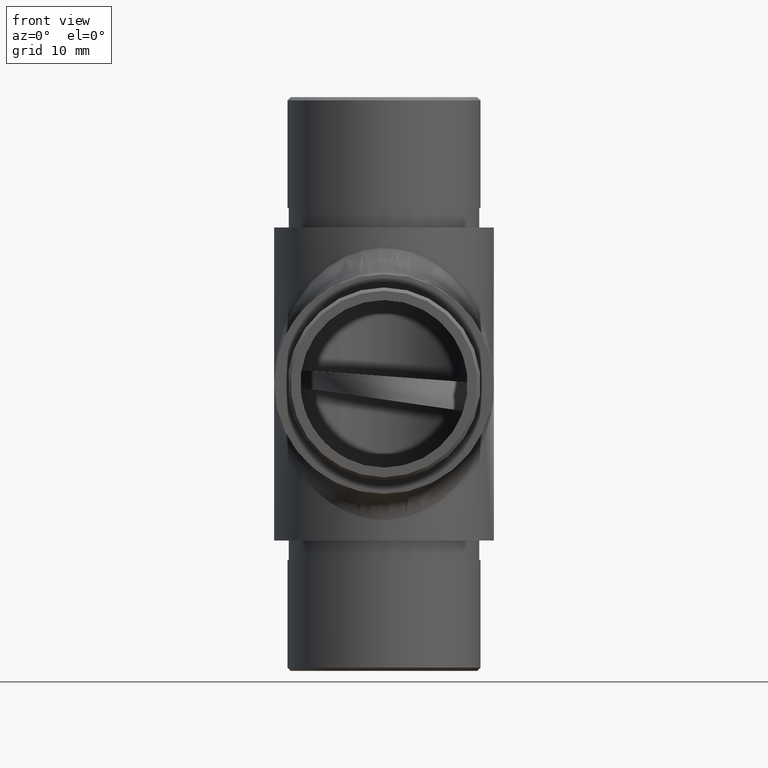
[diagram: clean part render]
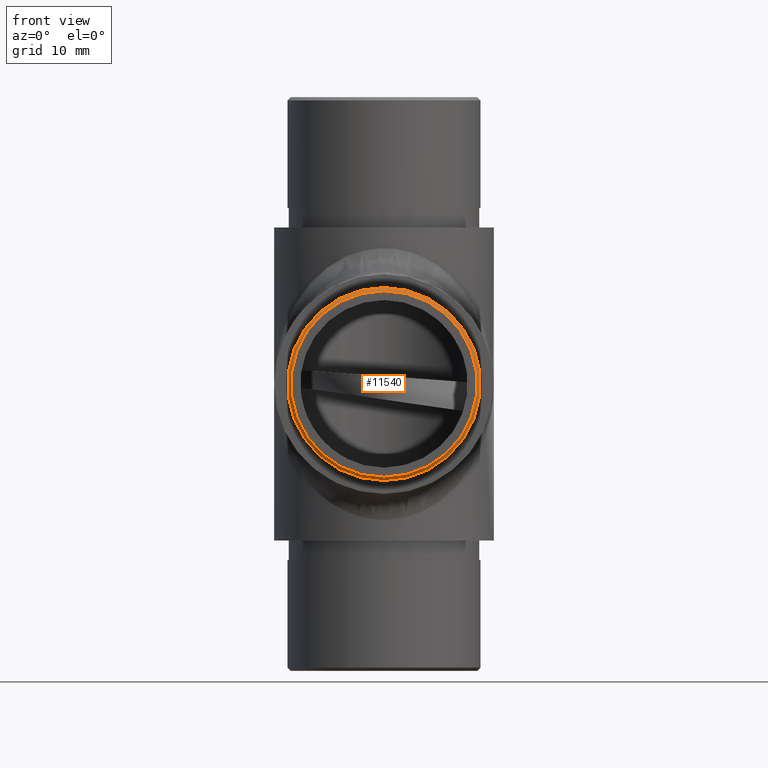
[diagram: same view with one face highlighted and labeled with its STEP entity id]
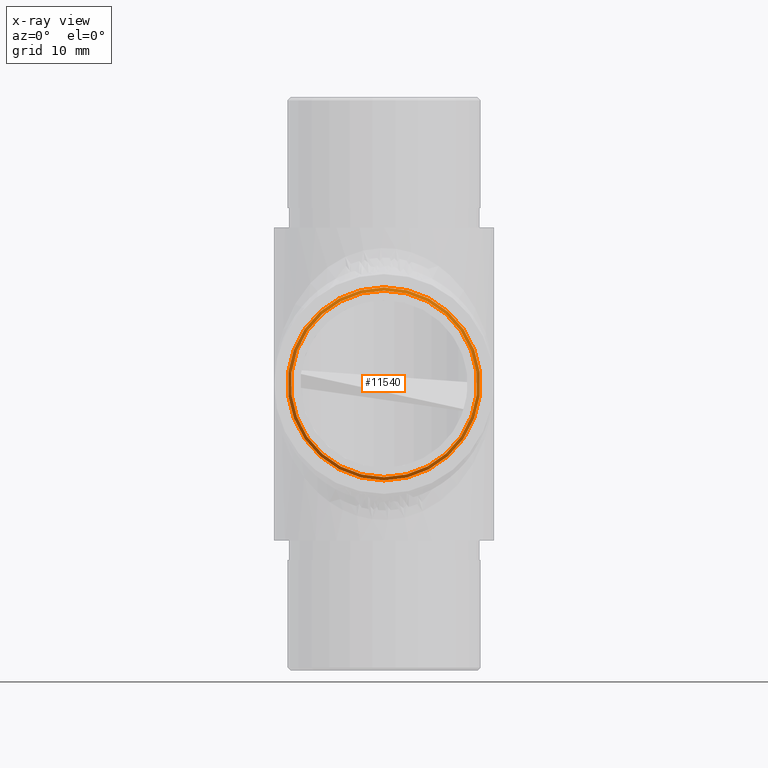
[diagram: x-ray of the same camera — body ghosted, the highlighted face saturated]
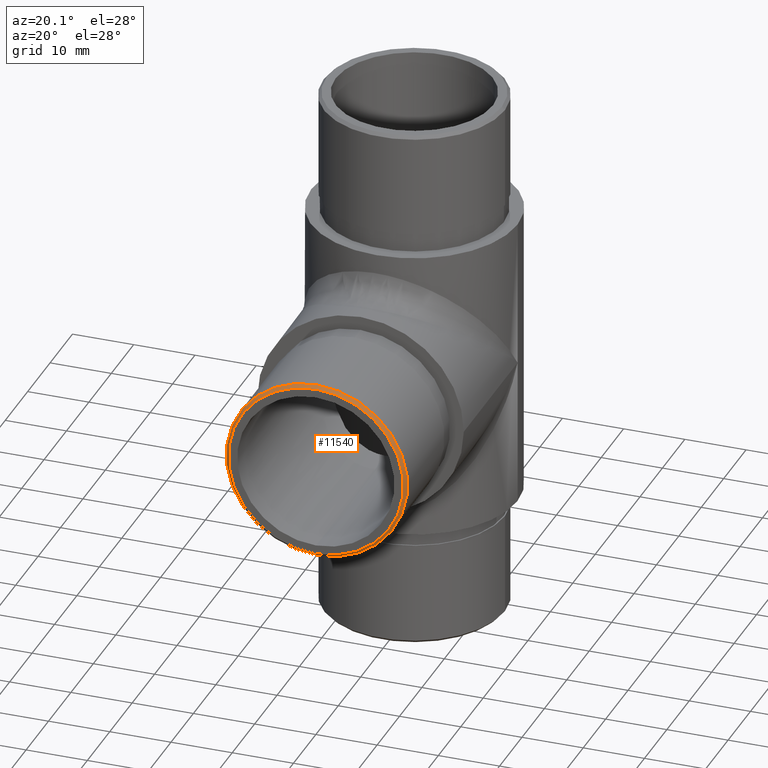
[diagram: same view with one face highlighted and labeled with its STEP entity id]
A machine part, front view. The second image highlights one B-rep face of the part: STEP entity #11540.
The next image is the same camera in x-ray: the body ghosted, the highlighted face saturated — about 0% of this face is hidden behind the body in this view.
A second angle (auxiliary view) of the same face is appended — the face is thin or edge-on in the first view.
In plain terms, the highlighted conical surface has half-angle 45 deg.
Its self-contained STEP definition (entity closure, byte-faithful):
#308 = CARTESIAN_POINT ( 'NONE',  ( 0.0000000000000000000, 0.5000000000000004400, 0.0000000000000000000 ) ) ;
#365 = CARTESIAN_POINT ( 'NONE',  ( 0.0000000000000000000, 0.0000000000000000000, -14.30000000000000800 ) ) ;
#2225 = FACE_BOUND ( 'NONE', #10084, .T. ) ;
#2639 = AXIS2_PLACEMENT_3D ( 'NONE', #308, #6582, #11062 ) ;
#2905 = DIRECTION ( 'NONE',  ( 0.0000000000000000000, 0.0000000000000000000, 1.000000000000000000 ) ) ;
#2975 = DIRECTION ( 'NONE',  ( 0.0000000000000000000, 0.0000000000000000000, -1.000000000000000000 ) ) ;
#2991 = ORIENTED_EDGE ( 'NONE', *, *, #11224, .F. ) ;
#3190 = AXIS2_PLACEMENT_3D ( 'NONE', #9370, #6492, #2905 ) ;
#3844 = CARTESIAN_POINT ( 'NONE',  ( 0.0000000000000000000, 0.0000000000000000000, 0.0000000000000000000 ) ) ;
#3910 = CARTESIAN_POINT ( 'NONE',  ( 0.0000000000000000000, 0.5000000000000004400, -14.79999999999999900 ) ) ;
#4489 = VERTEX_POINT ( 'NONE', #3910 ) ;
#4612 = AXIS2_PLACEMENT_3D ( 'NONE', #3844, #7493, #2975 ) ;
#4962 = EDGE_CURVE ( 'NONE', #4489, #4489, #7537, .T. ) ;
#5586 = FACE_OUTER_BOUND ( 'NONE', #11319, .T. ) ;
#6492 = DIRECTION ( 'NONE',  ( 0.0000000000000000000, 1.000000000000000000, 0.0000000000000000000 ) ) ;
#6582 = DIRECTION ( 'NONE',  ( 0.0000000000000000000, 1.000000000000000000, 0.0000000000000000000 ) ) ;
#7016 = ORIENTED_EDGE ( 'NONE', *, *, #4962, .F. ) ;
#7493 = DIRECTION ( 'NONE',  ( 0.0000000000000000000, -1.000000000000000000, 0.0000000000000000000 ) ) ;
#7537 = CIRCLE ( 'NONE', #2639, 14.79999999999999900 ) ;
#8281 = VERTEX_POINT ( 'NONE', #365 ) ;
#9370 = CARTESIAN_POINT ( 'NONE',  ( 0.0000000000000000000, 0.0000000000000000000, 0.0000000000000000000 ) ) ;
#9568 = CONICAL_SURFACE ( 'NONE', #3190, 14.30000000000000800, 0.7853981633974396200 ) ;
#10084 = EDGE_LOOP ( 'NONE', ( #2991 ) ) ;
#11062 = DIRECTION ( 'NONE',  ( 0.0000000000000000000, 0.0000000000000000000, -1.000000000000000000 ) ) ;
#11113 = CIRCLE ( 'NONE', #4612, 14.30000000000000800 ) ;
#11224 = EDGE_CURVE ( 'NONE', #8281, #8281, #11113, .T. ) ;
#11319 = EDGE_LOOP ( 'NONE', ( #7016 ) ) ;
#11540 = ADVANCED_FACE ( 'NONE', ( #5586, #2225 ), #9568, .T. ) ;